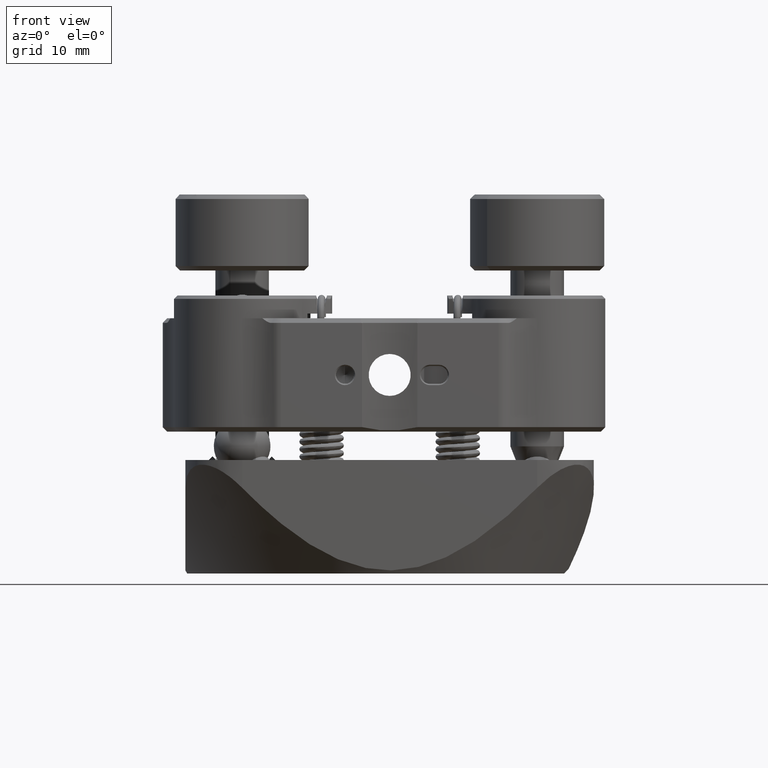
[diagram: clean part render]
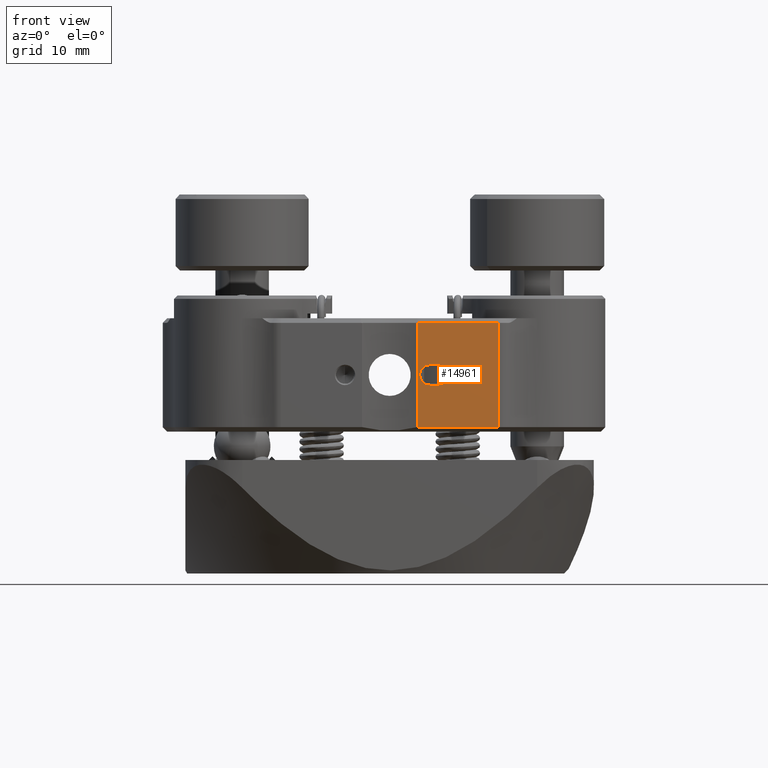
[diagram: same view with one face highlighted and labeled with its STEP entity id]
A machine part, front view. The second image highlights one B-rep face of the part: STEP entity #14961.
In plain terms, the highlighted planar face has unit normal (-0, 1, 0).
Its self-contained STEP definition (entity closure, byte-faithful):
#640 = VERTEX_POINT ( 'NONE', #930 ) ;
#779 = CARTESIAN_POINT ( 'NONE',  ( 37.53708336398629797, 3.224097397248482988, 26.18470909685332515 ) ) ;
#831 = CARTESIAN_POINT ( 'NONE',  ( 28.62641716057851227, 3.224097397248364860, 37.85226476518791117 ) ) ;
#930 = CARTESIAN_POINT ( 'NONE',  ( 30.87038173361318272, 3.224097397248392394, 33.16970909685332458 ) ) ;
#1065 = ORIENTED_EDGE ( 'NONE', *, *, #8681, .F. ) ;
#1234 = EDGE_CURVE ( 'NONE', #14760, #15758, #16043, .T. ) ;
#1780 = VERTEX_POINT ( 'NONE', #12993 ) ;
#2136 = EDGE_CURVE ( 'NONE', #8229, #14760, #19612, .T. ) ;
#2401 = EDGE_CURVE ( 'NONE', #8229, #2679, #4135, .T. ) ;
#2480 = VECTOR ( 'NONE', #3311, 1000.000000000000000 ) ;
#2679 = VERTEX_POINT ( 'NONE', #779 ) ;
#3311 = DIRECTION ( 'NONE',  ( -1.000000000000000000, -1.339870149023852659E-14, -1.612421360227179349E-14 ) ) ;
#3525 = CARTESIAN_POINT ( 'NONE',  ( 30.87038173361318272, 3.224097397248392394, 30.88370909685329124 ) ) ;
#3597 = DIRECTION ( 'NONE',  ( 1.000000000000000000, 1.339870149023852975E-14, 0.000000000000000000 ) ) ;
#3687 = VERTEX_POINT ( 'NONE', #18097 ) ;
#3757 = CARTESIAN_POINT ( 'NONE',  ( 28.47421683122240310, 3.224097397248361307, 37.84315022218402902 ) ) ;
#3782 = DIRECTION ( 'NONE',  ( -1.339870149023852975E-14, 1.000000000000000000, 0.000000000000000000 ) ) ;
#4135 = LINE ( 'NONE', #15095, #19288 ) ;
#4945 = CARTESIAN_POINT ( 'NONE',  ( 28.47421683122245284, 3.224097397248361307, 37.85226476518790406 ) ) ;
#4983 = VECTOR ( 'NONE', #3597, 1000.000000000000000 ) ;
#5059 = EDGE_CURVE ( 'NONE', #12531, #640, #9345, .T. ) ;
#5067 = VECTOR ( 'NONE', #5129, 1000.000000000000000 ) ;
#5129 = DIRECTION ( 'NONE',  ( -1.000000000000000000, -1.400580082737670969E-14, -0.000000000000000000 ) ) ;
#5185 = EDGE_LOOP ( 'NONE', ( #6201, #20520, #13764, #16775, #13091 ) ) ;
#5427 = CARTESIAN_POINT ( 'NONE',  ( 30.87038173361318272, 3.224097397248392394, 33.16970909685332458 ) ) ;
#5479 = CARTESIAN_POINT ( 'NONE',  ( 29.87952173361318486, 3.224097397248378627, 32.02670909685328837 ) ) ;
#5742 = ORIENTED_EDGE ( 'NONE', *, *, #5059, .F. ) ;
#5904 = CARTESIAN_POINT ( 'NONE',  ( 28.52488139609037177, 3.224097397248367969, 37.84842296574833398 ) ) ;
#5931 = DIRECTION ( 'NONE',  ( -0.000000000000000000, -0.000000000000000000, -1.000000000000000000 ) ) ;
#6044 = AXIS2_PLACEMENT_3D ( 'NONE', #5479, #7177, #16913 ) ;
#6201 = ORIENTED_EDGE ( 'NONE', *, *, #2401, .F. ) ;
#6912 = CARTESIAN_POINT ( 'NONE',  ( 28.47421683122239955, 3.224097397248361307, 40.91670909685328894 ) ) ;
#6977 = VECTOR ( 'NONE', #5931, 1000.000000000000000 ) ;
#7120 = LINE ( 'NONE', #5427, #12125 ) ;
#7177 = DIRECTION ( 'NONE',  ( -0.000000000000000000, -1.000000000000000000, -0.000000000000000000 ) ) ;
#7181 = CARTESIAN_POINT ( 'NONE',  ( 28.60103291817030779, 3.224097397248364416, 37.85202349075615302 ) ) ;
#7391 = EDGE_CURVE ( 'NONE', #15758, #3687, #12568, .T. ) ;
#8229 = VERTEX_POINT ( 'NONE', #10705 ) ;
#8298 = FACE_BOUND ( 'NONE', #10472, .T. ) ;
#8356 = DIRECTION ( 'NONE',  ( -0.000000000000000000, -0.000000000000000000, -1.000000000000000000 ) ) ;
#8661 = AXIS2_PLACEMENT_3D ( 'NONE', #19020, #15797, #12163 ) ;
#8681 = EDGE_CURVE ( 'NONE', #640, #16151, #7120, .T. ) ;
#9345 = CIRCLE ( 'NONE', #8661, 1.142999999999998240 ) ;
#10047 = LINE ( 'NONE', #19790, #5067 ) ;
#10472 = EDGE_LOOP ( 'NONE', ( #5742, #11753, #12363, #1065 ) ) ;
#10705 = CARTESIAN_POINT ( 'NONE',  ( 37.53708336398640455, 3.224097397248479435, 37.85226476518804617 ) ) ;
#10937 = EDGE_CURVE ( 'NONE', #3687, #2679, #15178, .T. ) ;
#11191 = CIRCLE ( 'NONE', #6044, 1.142999999999998240 ) ;
#11411 = CARTESIAN_POINT ( 'NONE',  ( 28.62641716057851227, 3.224097397248364860, 37.85226476518791117 ) ) ;
#11753 = ORIENTED_EDGE ( 'NONE', *, *, #17770, .T. ) ;
#12125 = VECTOR ( 'NONE', #19976, 1000.000000000000000 ) ;
#12163 = DIRECTION ( 'NONE',  ( 0.000000000000000000, 0.000000000000000000, -1.000000000000000000 ) ) ;
#12363 = ORIENTED_EDGE ( 'NONE', *, *, #13970, .F. ) ;
#12531 = VERTEX_POINT ( 'NONE', #3525 ) ;
#12568 = LINE ( 'NONE', #16082, #6977 ) ;
#12727 = CARTESIAN_POINT ( 'NONE',  ( 29.87952173361318486, 3.224097397248378627, 33.16970909685332458 ) ) ;
#12993 = CARTESIAN_POINT ( 'NONE',  ( 29.87952173361318486, 3.224097397248378627, 30.88370909685329124 ) ) ;
#13091 = ORIENTED_EDGE ( 'NONE', *, *, #10937, .T. ) ;
#13549 = DIRECTION ( 'NONE',  ( -1.000000000000000000, -1.339870149023852975E-14, 0.000000000000000000 ) ) ;
#13579 = CARTESIAN_POINT ( 'NONE',  ( 37.53708336398629797, 3.224097397248482988, 26.18470909685332515 ) ) ;
#13764 = ORIENTED_EDGE ( 'NONE', *, *, #1234, .T. ) ;
#13818 = CARTESIAN_POINT ( 'NONE',  ( 28.55029545244687128, 3.224097397248368413, 37.84997405895844480 ) ) ;
#13970 = EDGE_CURVE ( 'NONE', #16151, #1780, #11191, .T. ) ;
#14138 = CARTESIAN_POINT ( 'NONE',  ( 28.49949966533412393, 3.224097397248361752, 37.84615994807136019 ) ) ;
#14225 = AXIS2_PLACEMENT_3D ( 'NONE', #6912, #3782, #13549 ) ;
#14760 = VERTEX_POINT ( 'NONE', #11411 ) ;
#14961 = ADVANCED_FACE ( 'NONE', ( #8298, #16546 ), #15147, .F. ) ;
#15095 = CARTESIAN_POINT ( 'NONE',  ( 37.53708336398629797, 3.224097397248482988, 40.91670909685328894 ) ) ;
#15147 = PLANE ( 'NONE',  #14225 ) ;
#15178 = LINE ( 'NONE', #13579, #4983 ) ;
#15739 = CARTESIAN_POINT ( 'NONE',  ( 28.47421683122240310, 3.224097397248361307, 37.84315022218402902 ) ) ;
#15758 = VERTEX_POINT ( 'NONE', #3757 ) ;
#15797 = DIRECTION ( 'NONE',  ( -0.000000000000000000, -1.000000000000000000, -0.000000000000000000 ) ) ;
#16043 = B_SPLINE_CURVE_WITH_KNOTS ( 'NONE', 3,
 ( #831, #7181, #18636, #13818, #5904, #14138, #15739 ),
 .UNSPECIFIED., .F., .F.,
 ( 4, 3, 4 ),
 ( 0.000000000000000000, 7.615616707731955688E-05, 0.0001525348171617076174 ),
 .UNSPECIFIED. ) ;
#16082 = CARTESIAN_POINT ( 'NONE',  ( 28.47421683122240310, 3.224097397248361307, 40.91670909685328894 ) ) ;
#16151 = VERTEX_POINT ( 'NONE', #12727 ) ;
#16546 = FACE_OUTER_BOUND ( 'NONE', #5185, .T. ) ;
#16775 = ORIENTED_EDGE ( 'NONE', *, *, #7391, .T. ) ;
#16913 = DIRECTION ( 'NONE',  ( 0.000000000000000000, 0.000000000000000000, -1.000000000000000000 ) ) ;
#17770 = EDGE_CURVE ( 'NONE', #12531, #1780, #10047, .T. ) ;
#18097 = CARTESIAN_POINT ( 'NONE',  ( 28.47421683122240310, 3.224097397248361307, 26.18470909685332515 ) ) ;
#18636 = CARTESIAN_POINT ( 'NONE',  ( 28.57563369269956866, 3.224097397248368857, 37.85152052489291208 ) ) ;
#19020 = CARTESIAN_POINT ( 'NONE',  ( 30.87038173361318272, 3.224097397248392394, 32.02670909685328837 ) ) ;
#19288 = VECTOR ( 'NONE', #8356, 1000.000000000000000 ) ;
#19612 = LINE ( 'NONE', #4945, #2480 ) ;
#19790 = CARTESIAN_POINT ( 'NONE',  ( 30.87038173361318272, 3.224097397248392394, 30.88370909685329124 ) ) ;
#19976 = DIRECTION ( 'NONE',  ( -1.000000000000000000, -1.400580082737670969E-14, -0.000000000000000000 ) ) ;
#20520 = ORIENTED_EDGE ( 'NONE', *, *, #2136, .T. ) ;